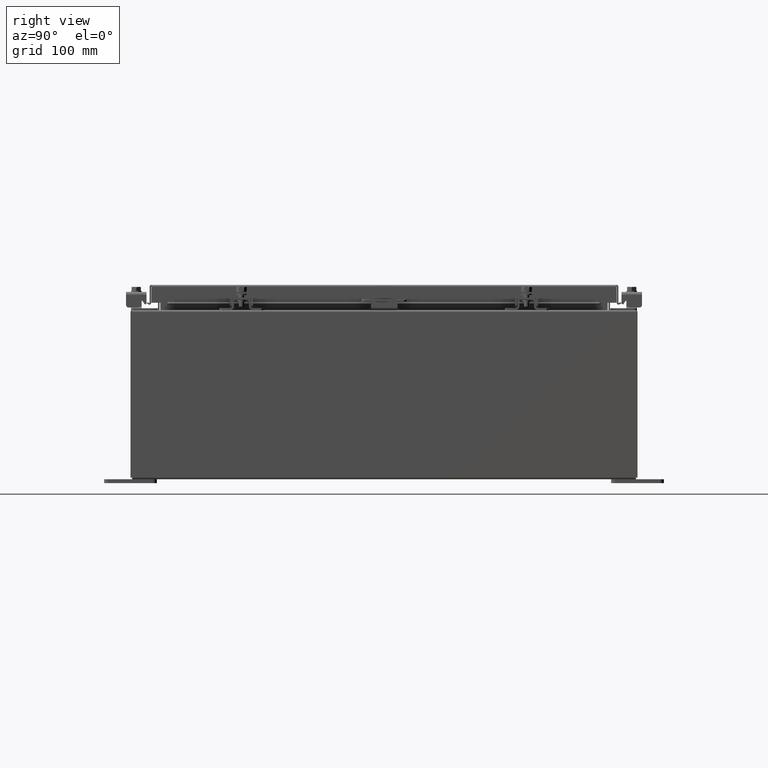
[diagram: clean part render]
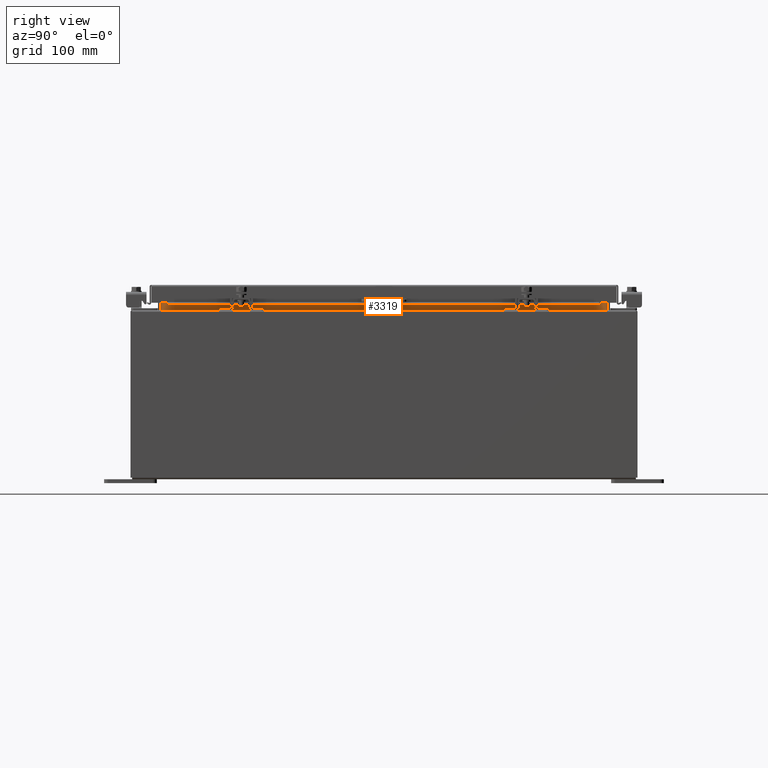
[diagram: same view with one face highlighted and labeled with its STEP entity id]
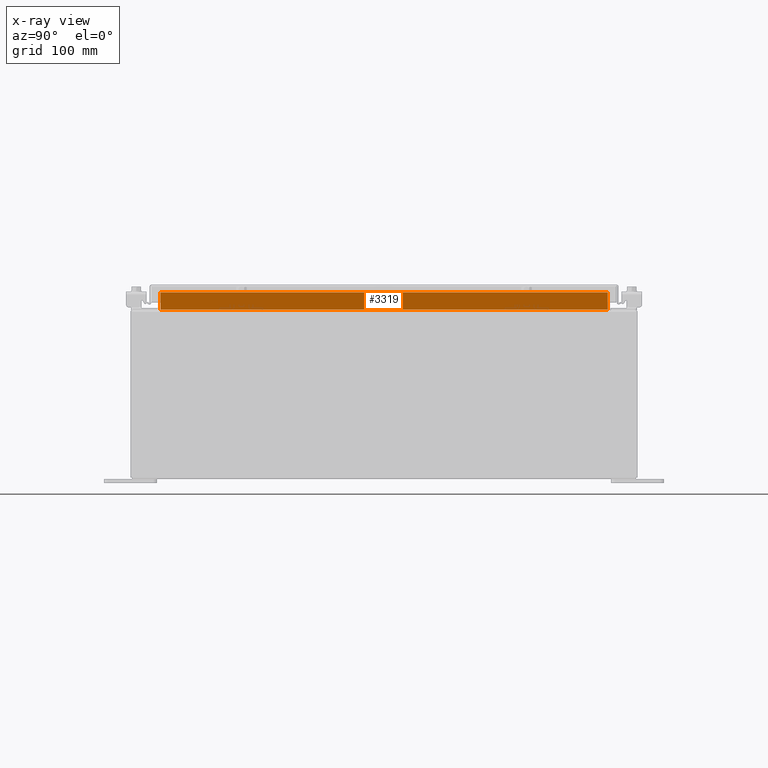
[diagram: x-ray of the same camera — body ghosted, the highlighted face saturated]
A machine part, right view. The second image highlights one B-rep face of the part: STEP entity #3319.
The next image is the same camera in x-ray: the body ghosted, the highlighted face saturated — about 0% of this face is hidden behind the body in this view.
In plain terms, the highlighted planar face has unit normal (1, 0, -0).
Its self-contained STEP definition (entity closure, byte-faithful):
#2984 = PLANE ( 'NONE',  #29289 ) ;
#3319 = ADVANCED_FACE ( 'NONE', ( #22698 ), #2984, .T. ) ;
#3905 = CARTESIAN_POINT ( 'NONE',  ( 8.699700000000030200, -10.59375000000000000, 8.762900000000007200 ) ) ;
#4058 = DIRECTION ( 'NONE',  ( 2.361913319930198800E-015, -0.0000000000000000000, 1.000000000000000000 ) ) ;
#5361 = DIRECTION ( 'NONE',  ( 1.000000000000000000, 0.0000000000000000000, -2.361913319930196000E-015 ) ) ;
#5749 = LINE ( 'NONE', #32077, #20773 ) ;
#6170 = DIRECTION ( 'NONE',  ( 5.157471138481205900E-017, -1.000000000000000000, 1.547241341544361900E-016 ) ) ;
#6275 = VERTEX_POINT ( 'NONE', #25203 ) ;
#6530 = VECTOR ( 'NONE', #20793, 39.37007874015748100 ) ;
#6921 = CARTESIAN_POINT ( 'NONE',  ( 8.699700000000028400, 10.59374999999999600, 7.925300000000007100 ) ) ;
#8414 = LINE ( 'NONE', #16146, #16814 ) ;
#9500 = VERTEX_POINT ( 'NONE', #3905 ) ;
#11766 = ORIENTED_EDGE ( 'NONE', *, *, #26749, .F. ) ;
#12663 = CARTESIAN_POINT ( 'NONE',  ( 8.699700000000033700, 10.59374999999999600, 8.762900000000007200 ) ) ;
#12791 = CARTESIAN_POINT ( 'NONE',  ( 8.699700000000033700, -10.59375000000000000, 8.762900000000007200 ) ) ;
#14300 = LINE ( 'NONE', #6921, #6530 ) ;
#14328 = EDGE_LOOP ( 'NONE', ( #20484, #20494, #23487, #11766 ) ) ;
#14873 = EDGE_CURVE ( 'NONE', #9500, #31514, #24828, .T. ) ;
#15691 = EDGE_CURVE ( 'NONE', #31514, #6275, #14300, .T. ) ;
#16146 = CARTESIAN_POINT ( 'NONE',  ( 8.699700000000028400, 10.59374999999999600, 7.938300000000007900 ) ) ;
#16747 = DIRECTION ( 'NONE',  ( -2.361913319930196000E-015, 0.0000000000000000000, -1.000000000000000000 ) ) ;
#16814 = VECTOR ( 'NONE', #6170, 39.37007874015748100 ) ;
#19602 = DIRECTION ( 'NONE',  ( 0.0000000000000000000, 1.000000000000000000, 0.0000000000000000000 ) ) ;
#20293 = EDGE_CURVE ( 'NONE', #20973, #9500, #5749, .T. ) ;
#20484 = ORIENTED_EDGE ( 'NONE', *, *, #15691, .F. ) ;
#20494 = ORIENTED_EDGE ( 'NONE', *, *, #14873, .F. ) ;
#20773 = VECTOR ( 'NONE', #4058, 39.37007874015748100 ) ;
#20793 = DIRECTION ( 'NONE',  ( -2.361913319930196000E-015, -0.0000000000000000000, -1.000000000000000000 ) ) ;
#20973 = VERTEX_POINT ( 'NONE', #30719 ) ;
#22408 = CARTESIAN_POINT ( 'NONE',  ( 8.699700000000010600, 0.0000000000000000000, -2.054793730939675100E-014 ) ) ;
#22698 = FACE_OUTER_BOUND ( 'NONE', #14328, .T. ) ;
#23487 = ORIENTED_EDGE ( 'NONE', *, *, #20293, .F. ) ;
#24828 = LINE ( 'NONE', #12791, #32164 ) ;
#25203 = CARTESIAN_POINT ( 'NONE',  ( 8.699700000000028400, 10.59374999999999600, 7.938300000000009700 ) ) ;
#26749 = EDGE_CURVE ( 'NONE', #6275, #20973, #8414, .T. ) ;
#29289 = AXIS2_PLACEMENT_3D ( 'NONE', #22408, #5361, #16747 ) ;
#30719 = CARTESIAN_POINT ( 'NONE',  ( 8.699700000000028400, -10.59374999999999800, 7.938300000000009700 ) ) ;
#31514 = VERTEX_POINT ( 'NONE', #12663 ) ;
#32077 = CARTESIAN_POINT ( 'NONE',  ( 8.699700000000030200, -10.59375000000000000, 8.850600000000007100 ) ) ;
#32164 = VECTOR ( 'NONE', #19602, 39.37007874015748100 ) ;